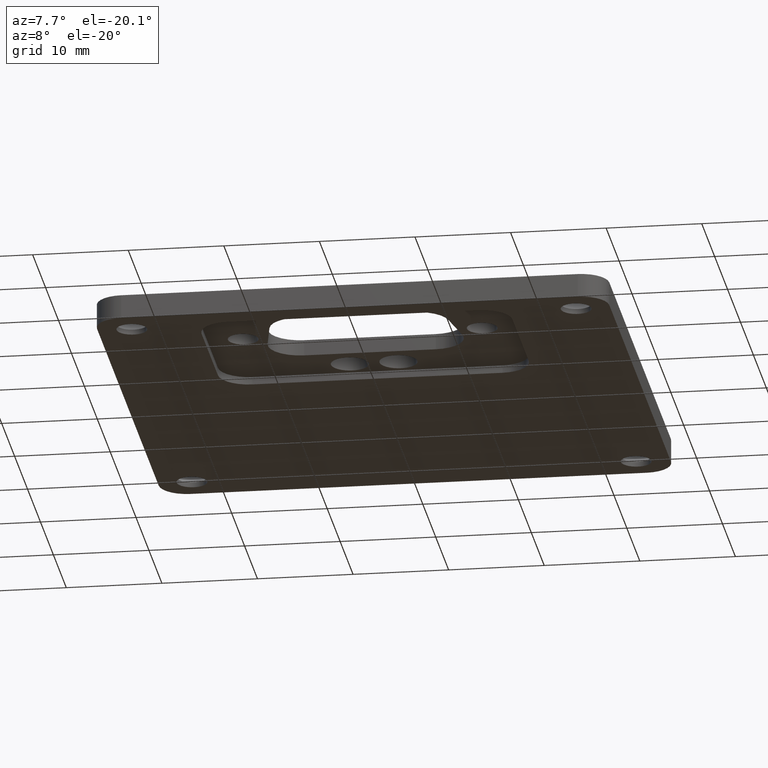
[diagram: clean part render]
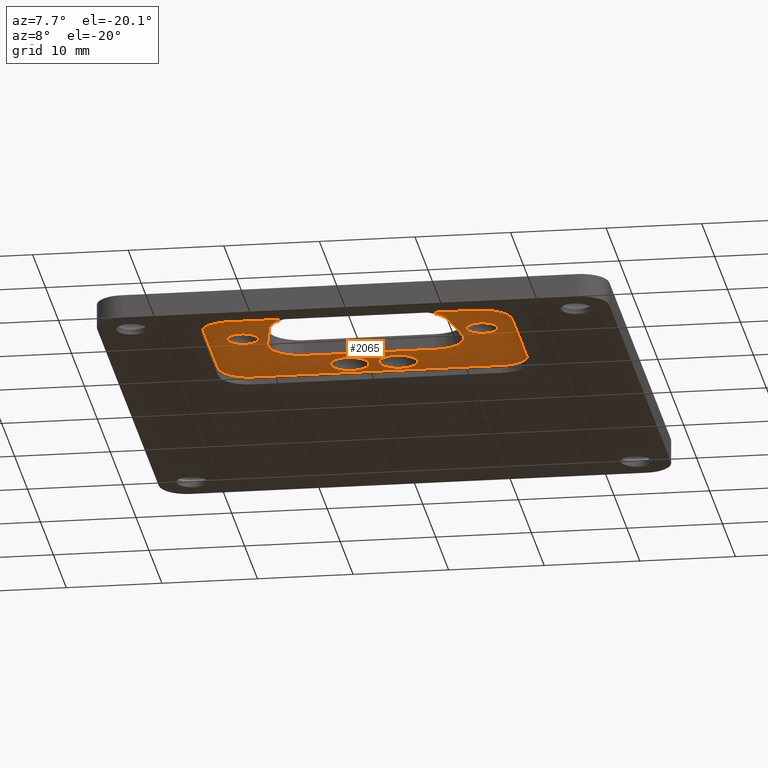
[diagram: same view with one face highlighted and labeled with its STEP entity id]
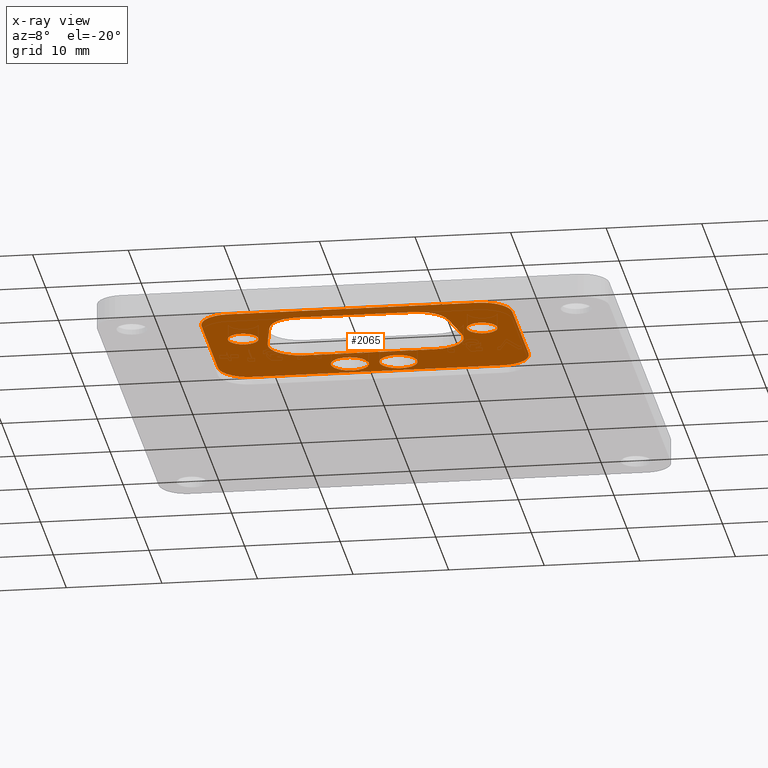
[diagram: x-ray of the same camera — body ghosted, the highlighted face saturated]
A machine part, auxiliary view. The second image highlights one B-rep face of the part: STEP entity #2065.
The next image is the same camera in x-ray: the body ghosted, the highlighted face saturated — about 0% of this face is hidden behind the body in this view.
In plain terms, the highlighted planar face has unit normal (0, 0, -1).
Its self-contained STEP definition (entity closure, byte-faithful):
#18 = ORIENTED_EDGE ( 'NONE', *, *, #163, .F. ) ;
#25 = ORIENTED_EDGE ( 'NONE', *, *, #5239, .F. ) ;
#36 = CARTESIAN_POINT ( 'NONE',  ( -0.1000000000000000200, -0.2999999999999999900, -0.01678740157480315000 ) ) ;
#42 = EDGE_LOOP ( 'NONE', ( #2202, #6302 ) ) ;
#50 = VERTEX_POINT ( 'NONE', #2145 ) ;
#86 = DIRECTION ( 'NONE',  ( 0.0000000000000000000, 0.0000000000000000000, -1.000000000000000000 ) ) ;
#124 = CIRCLE ( 'NONE', #5314, 0.1249999999999999600 ) ;
#156 = DIRECTION ( 'NONE',  ( -1.000000000000000000, 0.0000000000000000000, 0.0000000000000000000 ) ) ;
#163 = EDGE_CURVE ( 'NONE', #5773, #919, #6169, .T. ) ;
#190 = FACE_BOUND ( 'NONE', #6287, .T. ) ;
#236 = AXIS2_PLACEMENT_3D ( 'NONE', #6095, #3126, #156 ) ;
#249 = LINE ( 'NONE', #5909, #3874 ) ;
#253 = DIRECTION ( 'NONE',  ( -0.1736481776669312700, 0.9848077530122078000, 0.0000000000000000000 ) ) ;
#260 = CIRCLE ( 'NONE', #6046, 0.1250000000000000300 ) ;
#330 = CARTESIAN_POINT ( 'NONE',  ( -0.6399999999999999000, -0.3254000000000001900, -0.01678740157480316400 ) ) ;
#409 = CARTESIAN_POINT ( 'NONE',  ( -0.1000000000000000200, -0.2999999999999999900, -0.01678740157480315000 ) ) ;
#460 = DIRECTION ( 'NONE',  ( -2.731847993664263700E-016, -1.000000000000000000, 0.0000000000000000000 ) ) ;
#466 = CARTESIAN_POINT ( 'NONE',  ( 0.2383795085689338300, -0.7428999999999998900, -0.01678740157480315000 ) ) ;
#469 = ORIENTED_EDGE ( 'NONE', *, *, #1195, .F. ) ;
#512 = ORIENTED_EDGE ( 'NONE', *, *, #6392, .F. ) ;
#521 = CIRCLE ( 'NONE', #5953, 0.07812500000000001400 ) ;
#531 = VERTEX_POINT ( 'NONE', #6412 ) ;
#554 = DIRECTION ( 'NONE',  ( -1.000000000000000000, 0.0000000000000000000, 0.0000000000000000000 ) ) ;
#586 = CIRCLE ( 'NONE', #5361, 0.07812500000000000000 ) ;
#592 = LINE ( 'NONE', #3344, #5532 ) ;
#600 = CARTESIAN_POINT ( 'NONE',  ( -0.2710000000000000700, -0.5578999999999999500, -0.01678740157480315000 ) ) ;
#613 = VERTEX_POINT ( 'NONE', #4641 ) ;
#660 = ORIENTED_EDGE ( 'NONE', *, *, #3019, .T. ) ;
#715 = DIRECTION ( 'NONE',  ( 0.0000000000000000000, 0.0000000000000000000, -1.000000000000000000 ) ) ;
#767 = CARTESIAN_POINT ( 'NONE',  ( 0.4009946233976115500, -0.5808215594520348400, -0.01678740157480315000 ) ) ;
#816 = CARTESIAN_POINT ( 'NONE',  ( 0.5551259842519686800, -0.6503999999999999800, -0.01678740157480315000 ) ) ;
#858 = LINE ( 'NONE', #3006, #2161 ) ;
#910 = VERTEX_POINT ( 'NONE', #816 ) ;
#919 = VERTEX_POINT ( 'NONE', #5757 ) ;
#934 = CARTESIAN_POINT ( 'NONE',  ( -0.6399999999999996800, -0.8254000000000001300, -0.01678740157480316400 ) ) ;
#950 = DIRECTION ( 'NONE',  ( -1.000000000000000000, 0.0000000000000000000, 0.0000000000000000000 ) ) ;
#1009 = LINE ( 'NONE', #2905, #3630 ) ;
#1019 = EDGE_CURVE ( 'NONE', #919, #3635, #858, .T. ) ;
#1103 = CARTESIAN_POINT ( 'NONE',  ( 0.2383795085689338600, -0.8748999999999999000, -0.01678740157480315000 ) ) ;
#1145 = CARTESIAN_POINT ( 'NONE',  ( 0.2710000000000000700, -0.4259000000000000000, -0.01678740157480315000 ) ) ;
#1146 = CARTESIAN_POINT ( 'NONE',  ( 0.2710000000000000700, -0.5578999999999999500, -0.01678740157480315000 ) ) ;
#1155 = LINE ( 'NONE', #330, #2296 ) ;
#1195 = EDGE_CURVE ( 'NONE', #613, #3602, #3247, .T. ) ;
#1211 = DIRECTION ( 'NONE',  ( -1.000000000000000000, 0.0000000000000000000, 0.0000000000000000000 ) ) ;
#1338 = CARTESIAN_POINT ( 'NONE',  ( 0.4030000000000000200, -0.5578999999999999500, -0.01678740157480315000 ) ) ;
#1346 = AXIS2_PLACEMENT_3D ( 'NONE', #466, #3891, #950 ) ;
#1356 = ORIENTED_EDGE ( 'NONE', *, *, #4506, .T. ) ;
#1395 = EDGE_CURVE ( 'NONE', #4160, #2032, #2220, .T. ) ;
#1416 = LINE ( 'NONE', #1548, #2566 ) ;
#1505 = FACE_BOUND ( 'NONE', #4377, .T. ) ;
#1518 = VERTEX_POINT ( 'NONE', #3915 ) ;
#1548 = CARTESIAN_POINT ( 'NONE',  ( -0.9399999999999993900, -0.8749000000000001200, -0.01678740157480315000 ) ) ;
#1579 = AXIS2_PLACEMENT_3D ( 'NONE', #5128, #3366, #4614 ) ;
#1650 = CARTESIAN_POINT ( 'NONE',  ( -0.6399999999999999000, -0.3254000000000001900, -0.01678740157480261900 ) ) ;
#1667 = ORIENTED_EDGE ( 'NONE', *, *, #4045, .T. ) ;
#1705 = CARTESIAN_POINT ( 'NONE',  ( -0.4921259842519684100, -0.6503999999999999800, -0.01678740157480315000 ) ) ;
#1760 = DIRECTION ( 'NONE',  ( 0.0000000000000000000, 0.0000000000000000000, -1.000000000000000000 ) ) ;
#1861 = ORIENTED_EDGE ( 'NONE', *, *, #1876, .F. ) ;
#1876 = EDGE_CURVE ( 'NONE', #910, #4364, #2974, .T. ) ;
#1955 = DIRECTION ( 'NONE',  ( 0.0000000000000000000, 0.0000000000000000000, -1.000000000000000000 ) ) ;
#1982 = EDGE_LOOP ( 'NONE', ( #469, #3640 ) ) ;
#1989 = CARTESIAN_POINT ( 'NONE',  ( 0.1000000000000000200, -0.2999999999999999900, -0.01678740157480315000 ) ) ;
#2029 = VERTEX_POINT ( 'NONE', #6174 ) ;
#2032 = VERTEX_POINT ( 'NONE', #767 ) ;
#2050 = VECTOR ( 'NONE', #5952, 39.37007874015748100 ) ;
#2062 = PLANE ( 'NONE',  #6367 ) ;
#2065 = ADVANCED_FACE ( 'NONE', ( #1505, #4906, #190, #5290, #3973, #2647 ), #2062, .T. ) ;
#2070 = EDGE_CURVE ( 'NONE', #3602, #613, #5137, .T. ) ;
#2082 = CARTESIAN_POINT ( 'NONE',  ( -0.5149999999999997900, -0.3254000000000001900, -0.01678740157480316400 ) ) ;
#2141 = EDGE_CURVE ( 'NONE', #6335, #5773, #592, .T. ) ;
#2145 = CARTESIAN_POINT ( 'NONE',  ( 0.6399999999999996800, -0.3254000000000000200, -0.01678740157480316400 ) ) ;
#2161 = VECTOR ( 'NONE', #4993, 39.37007874015748100 ) ;
#2202 = ORIENTED_EDGE ( 'NONE', *, *, #3430, .F. ) ;
#2215 = EDGE_CURVE ( 'NONE', #4364, #910, #4212, .T. ) ;
#2220 = CIRCLE ( 'NONE', #2717, 0.1319999999999999800 ) ;
#2266 = CIRCLE ( 'NONE', #236, 0.1320000000000000900 ) ;
#2285 = ORIENTED_EDGE ( 'NONE', *, *, #2215, .F. ) ;
#2296 = VECTOR ( 'NONE', #6275, 39.37007874015748100 ) ;
#2314 = DIRECTION ( 'NONE',  ( 0.0000000000000000000, 0.0000000000000000000, -1.000000000000000000 ) ) ;
#2333 = AXIS2_PLACEMENT_3D ( 'NONE', #2919, #6415, #3428 ) ;
#2361 = AXIS2_PLACEMENT_3D ( 'NONE', #3063, #4599, #6137 ) ;
#2453 = DIRECTION ( 'NONE',  ( -1.000000000000000000, -1.326139802749642700E-016, 0.0000000000000000000 ) ) ;
#2465 = DIRECTION ( 'NONE',  ( -1.000000000000000000, 0.0000000000000000000, 0.0000000000000000000 ) ) ;
#2466 = CARTESIAN_POINT ( 'NONE',  ( 0.5149999999999996800, -0.2003999999999999900, -0.01678740157480316400 ) ) ;
#2468 = CARTESIAN_POINT ( 'NONE',  ( -0.9399999999999999500, 0.9399999999999999500, -0.01678740157480315000 ) ) ;
#2469 = AXIS2_PLACEMENT_3D ( 'NONE', #5135, #4392, #3923 ) ;
#2485 = CIRCLE ( 'NONE', #2333, 0.1319999999999999800 ) ;
#2526 = VERTEX_POINT ( 'NONE', #934 ) ;
#2548 = DIRECTION ( 'NONE',  ( -1.000000000000000000, 0.0000000000000000000, 0.0000000000000000000 ) ) ;
#2566 = VECTOR ( 'NONE', #6007, 39.37007874015748100 ) ;
#2621 = CARTESIAN_POINT ( 'NONE',  ( 0.6206344916272400500, 0.6648180321018762900, -0.01678740157480315000 ) ) ;
#2647 = FACE_OUTER_BOUND ( 'NONE', #4154, .T. ) ;
#2664 = VERTEX_POINT ( 'NONE', #6021 ) ;
#2717 = AXIS2_PLACEMENT_3D ( 'NONE', #1146, #715, #5460 ) ;
#2744 = ORIENTED_EDGE ( 'NONE', *, *, #4649, .T. ) ;
#2905 = CARTESIAN_POINT ( 'NONE',  ( 0.5149999999999999000, -0.9503999999999999100, -0.01678740157480316400 ) ) ;
#2919 = CARTESIAN_POINT ( 'NONE',  ( 0.2710000000000000700, -0.5578999999999999500, -0.01678740157480315000 ) ) ;
#2971 = VERTEX_POINT ( 'NONE', #3379 ) ;
#2974 = CIRCLE ( 'NONE', #2469, 0.06299999999999998700 ) ;
#3006 = CARTESIAN_POINT ( 'NONE',  ( -0.9399999999999999500, -0.4259000000000001100, -0.01678740157480315000 ) ) ;
#3019 = EDGE_CURVE ( 'NONE', #50, #1518, #249, .T. ) ;
#3063 = CARTESIAN_POINT ( 'NONE',  ( -0.5149999999999997900, -0.8254000000000001300, -0.01678740157480316400 ) ) ;
#3126 = DIRECTION ( 'NONE',  ( 0.0000000000000000000, 0.0000000000000000000, -1.000000000000000000 ) ) ;
#3132 = DIRECTION ( 'NONE',  ( 0.0000000000000000000, 0.0000000000000000000, -1.000000000000000000 ) ) ;
#3194 = AXIS2_PLACEMENT_3D ( 'NONE', #5795, #2314, #5280 ) ;
#3247 = CIRCLE ( 'NONE', #3194, 0.06299999999999998700 ) ;
#3275 = VECTOR ( 'NONE', #4644, 39.37007874015748100 ) ;
#3285 = DIRECTION ( 'NONE',  ( 0.0000000000000000000, 0.0000000000000000000, -1.000000000000000000 ) ) ;
#3344 = CARTESIAN_POINT ( 'NONE',  ( -0.6773234280884863300, 0.9863169668280074000, -0.01678740157480315000 ) ) ;
#3358 = DIRECTION ( 'NONE',  ( 0.0000000000000000000, 0.0000000000000000000, -1.000000000000000000 ) ) ;
#3366 = DIRECTION ( 'NONE',  ( 0.0000000000000000000, 0.0000000000000000000, -1.000000000000000000 ) ) ;
#3379 = CARTESIAN_POINT ( 'NONE',  ( 0.3683741319665452800, -0.7658215594520347800, -0.01678740157480315000 ) ) ;
#3386 = VERTEX_POINT ( 'NONE', #3426 ) ;
#3426 = CARTESIAN_POINT ( 'NONE',  ( -0.5149999999999997900, -0.9504000000000000200, -0.01678740157480316400 ) ) ;
#3428 = DIRECTION ( 'NONE',  ( -1.000000000000000000, 0.0000000000000000000, 0.0000000000000000000 ) ) ;
#3430 = EDGE_CURVE ( 'NONE', #2664, #5302, #4262, .T. ) ;
#3493 = CARTESIAN_POINT ( 'NONE',  ( -0.1781250000000000300, -0.2999999999999999900, -0.01678740157480315000 ) ) ;
#3495 = DIRECTION ( 'NONE',  ( 0.0000000000000000000, 0.0000000000000000000, -1.000000000000000000 ) ) ;
#3527 = ORIENTED_EDGE ( 'NONE', *, *, #5990, .F. ) ;
#3560 = CIRCLE ( 'NONE', #4679, 0.07812500000000001400 ) ;
#3602 = VERTEX_POINT ( 'NONE', #6101 ) ;
#3630 = VECTOR ( 'NONE', #2453, 39.37007874015748100 ) ;
#3635 = VERTEX_POINT ( 'NONE', #1145 ) ;
#3640 = ORIENTED_EDGE ( 'NONE', *, *, #2070, .F. ) ;
#3650 = EDGE_LOOP ( 'NONE', ( #2285, #1861 ) ) ;
#3790 = AXIS2_PLACEMENT_3D ( 'NONE', #600, #86, #5752 ) ;
#3857 = EDGE_CURVE ( 'NONE', #3386, #2526, #4492, .T. ) ;
#3874 = VECTOR ( 'NONE', #460, 39.37007874015748100 ) ;
#3891 = DIRECTION ( 'NONE',  ( 0.0000000000000000000, 0.0000000000000000000, -1.000000000000000000 ) ) ;
#3915 = CARTESIAN_POINT ( 'NONE',  ( 0.6399999999999996800, -0.8254000000000001300, -0.01678740157480316400 ) ) ;
#3923 = DIRECTION ( 'NONE',  ( -1.000000000000000000, 0.0000000000000000000, 0.0000000000000000000 ) ) ;
#3957 = EDGE_CURVE ( 'NONE', #2029, #531, #3560, .T. ) ;
#3973 = FACE_BOUND ( 'NONE', #3650, .T. ) ;
#4008 = EDGE_CURVE ( 'NONE', #4511, #3386, #1009, .T. ) ;
#4045 = EDGE_CURVE ( 'NONE', #2526, #4081, #1155, .T. ) ;
#4081 = VERTEX_POINT ( 'NONE', #1650 ) ;
#4083 = CARTESIAN_POINT ( 'NONE',  ( -0.4009946233976115500, -0.5808215594520348400, -0.01678740157480315000 ) ) ;
#4110 = ORIENTED_EDGE ( 'NONE', *, *, #5494, .T. ) ;
#4133 = ORIENTED_EDGE ( 'NONE', *, *, #1395, .F. ) ;
#4154 = EDGE_LOOP ( 'NONE', ( #5313, #4346, #1667, #5626, #4110, #2744, #660, #1356 ) ) ;
#4160 = VERTEX_POINT ( 'NONE', #1338 ) ;
#4165 = CARTESIAN_POINT ( 'NONE',  ( -0.5149999999999997900, -0.2004000000000001300, -0.01678740157480316400 ) ) ;
#4212 = CIRCLE ( 'NONE', #1579, 0.06299999999999998700 ) ;
#4221 = CARTESIAN_POINT ( 'NONE',  ( 0.5149999999999999000, -0.9503999999999999100, -0.01678740157480316400 ) ) ;
#4233 = ORIENTED_EDGE ( 'NONE', *, *, #6226, .F. ) ;
#4262 = CIRCLE ( 'NONE', #4603, 0.07812500000000000000 ) ;
#4301 = CARTESIAN_POINT ( 'NONE',  ( 0.5149999999999996800, -0.2003999999999999900, -0.01678740157480316400 ) ) ;
#4346 = ORIENTED_EDGE ( 'NONE', *, *, #3857, .T. ) ;
#4364 = VERTEX_POINT ( 'NONE', #5112 ) ;
#4377 = EDGE_LOOP ( 'NONE', ( #25, #4795 ) ) ;
#4392 = DIRECTION ( 'NONE',  ( 0.0000000000000000000, 0.0000000000000000000, -1.000000000000000000 ) ) ;
#4457 = VERTEX_POINT ( 'NONE', #6037 ) ;
#4492 = CIRCLE ( 'NONE', #2361, 0.1249999999999999600 ) ;
#4506 = EDGE_CURVE ( 'NONE', #1518, #4511, #124, .T. ) ;
#4511 = VERTEX_POINT ( 'NONE', #4221 ) ;
#4599 = DIRECTION ( 'NONE',  ( 0.0000000000000000000, 0.0000000000000000000, -1.000000000000000000 ) ) ;
#4603 = AXIS2_PLACEMENT_3D ( 'NONE', #409, #3358, #6347 ) ;
#4614 = DIRECTION ( 'NONE',  ( -1.000000000000000000, 0.0000000000000000000, 0.0000000000000000000 ) ) ;
#4641 = CARTESIAN_POINT ( 'NONE',  ( -0.5551259842519683500, -0.6503999999999999800, -0.01678740157480315000 ) ) ;
#4644 = DIRECTION ( 'NONE',  ( -0.1736481776669317200, -0.9848077530122078000, 0.0000000000000000000 ) ) ;
#4649 = EDGE_CURVE ( 'NONE', #5011, #50, #5630, .T. ) ;
#4654 = DIRECTION ( 'NONE',  ( 0.0000000000000000000, 0.0000000000000000000, -1.000000000000000000 ) ) ;
#4658 = ORIENTED_EDGE ( 'NONE', *, *, #1019, .F. ) ;
#4679 = AXIS2_PLACEMENT_3D ( 'NONE', #6103, #3132, #5184 ) ;
#4710 = CARTESIAN_POINT ( 'NONE',  ( 0.5149999999999997900, -0.8254000000000000200, -0.01678740157480316400 ) ) ;
#4795 = ORIENTED_EDGE ( 'NONE', *, *, #3957, .F. ) ;
#4901 = CARTESIAN_POINT ( 'NONE',  ( 0.5149999999999996800, -0.3254000000000000200, -0.01678740157480316400 ) ) ;
#4906 = FACE_BOUND ( 'NONE', #42, .T. ) ;
#4908 = ORIENTED_EDGE ( 'NONE', *, *, #5997, .F. ) ;
#4993 = DIRECTION ( 'NONE',  ( 1.000000000000000000, 0.0000000000000000000, 0.0000000000000000000 ) ) ;
#5011 = VERTEX_POINT ( 'NONE', #4301 ) ;
#5112 = CARTESIAN_POINT ( 'NONE',  ( 0.4291259842519686800, -0.6503999999999999800, -0.01678740157480315000 ) ) ;
#5128 = CARTESIAN_POINT ( 'NONE',  ( 0.4921259842519686800, -0.6503999999999999800, -0.01678740157480315000 ) ) ;
#5135 = CARTESIAN_POINT ( 'NONE',  ( 0.4921259842519686800, -0.6503999999999999800, -0.01678740157480315000 ) ) ;
#5137 = CIRCLE ( 'NONE', #6019, 0.06299999999999998700 ) ;
#5184 = DIRECTION ( 'NONE',  ( -1.000000000000000000, 0.0000000000000000000, 0.0000000000000000000 ) ) ;
#5211 = DIRECTION ( 'NONE',  ( -1.000000000000000000, 0.0000000000000000000, 0.0000000000000000000 ) ) ;
#5239 = EDGE_CURVE ( 'NONE', #531, #2029, #521, .T. ) ;
#5280 = DIRECTION ( 'NONE',  ( -1.000000000000000000, 0.0000000000000000000, 0.0000000000000000000 ) ) ;
#5290 = FACE_BOUND ( 'NONE', #1982, .T. ) ;
#5302 = VERTEX_POINT ( 'NONE', #3493 ) ;
#5313 = ORIENTED_EDGE ( 'NONE', *, *, #4008, .T. ) ;
#5314 = AXIS2_PLACEMENT_3D ( 'NONE', #4710, #1760, #5211 ) ;
#5361 = AXIS2_PLACEMENT_3D ( 'NONE', #36, #3495, #554 ) ;
#5412 = DIRECTION ( 'NONE',  ( -1.000000000000000000, 0.0000000000000000000, 0.0000000000000000000 ) ) ;
#5442 = DIRECTION ( 'NONE',  ( 0.0000000000000000000, 0.0000000000000000000, -1.000000000000000000 ) ) ;
#5460 = DIRECTION ( 'NONE',  ( -1.000000000000000000, 0.0000000000000000000, 0.0000000000000000000 ) ) ;
#5494 = EDGE_CURVE ( 'NONE', #6417, #5011, #5845, .T. ) ;
#5525 = AXIS2_PLACEMENT_3D ( 'NONE', #4901, #1955, #5412 ) ;
#5532 = VECTOR ( 'NONE', #253, 39.37007874015748900 ) ;
#5533 = DIRECTION ( 'NONE',  ( 0.0000000000000000000, 0.0000000000000000000, -1.000000000000000000 ) ) ;
#5535 = EDGE_CURVE ( 'NONE', #5302, #2664, #586, .T. ) ;
#5548 = CARTESIAN_POINT ( 'NONE',  ( -0.3683741319665453900, -0.7658215594520347800, -0.01678740157480315000 ) ) ;
#5626 = ORIENTED_EDGE ( 'NONE', *, *, #5682, .T. ) ;
#5630 = CIRCLE ( 'NONE', #5525, 0.1250000000000001100 ) ;
#5632 = ORIENTED_EDGE ( 'NONE', *, *, #6356, .F. ) ;
#5666 = ORIENTED_EDGE ( 'NONE', *, *, #2141, .F. ) ;
#5682 = EDGE_CURVE ( 'NONE', #4081, #6417, #260, .T. ) ;
#5752 = DIRECTION ( 'NONE',  ( -1.000000000000000000, 0.0000000000000000000, 0.0000000000000000000 ) ) ;
#5757 = CARTESIAN_POINT ( 'NONE',  ( -0.2710000000000000700, -0.4259000000000001100, -0.01678740157480315000 ) ) ;
#5762 = VERTEX_POINT ( 'NONE', #1103 ) ;
#5773 = VERTEX_POINT ( 'NONE', #4083 ) ;
#5781 = DIRECTION ( 'NONE',  ( -1.000000000000000000, 0.0000000000000000000, 0.0000000000000000000 ) ) ;
#5795 = CARTESIAN_POINT ( 'NONE',  ( -0.4921259842519684100, -0.6503999999999999800, -0.01678740157480315000 ) ) ;
#5845 = LINE ( 'NONE', #2466, #2050 ) ;
#5909 = CARTESIAN_POINT ( 'NONE',  ( 0.6399999999999999000, -0.3254000000000000200, -0.01678740157480316400 ) ) ;
#5917 = LINE ( 'NONE', #2621, #3275 ) ;
#5952 = DIRECTION ( 'NONE',  ( 1.000000000000000000, 1.326139802749643200E-016, 0.0000000000000000000 ) ) ;
#5953 = AXIS2_PLACEMENT_3D ( 'NONE', #1989, #5442, #2465 ) ;
#5990 = EDGE_CURVE ( 'NONE', #2971, #5762, #6315, .T. ) ;
#5997 = EDGE_CURVE ( 'NONE', #3635, #4160, #2485, .T. ) ;
#6007 = DIRECTION ( 'NONE',  ( -1.000000000000000000, -2.865019743165419700E-016, 0.0000000000000000000 ) ) ;
#6019 = AXIS2_PLACEMENT_3D ( 'NONE', #1705, #4654, #1211 ) ;
#6021 = CARTESIAN_POINT ( 'NONE',  ( -0.02187500000000002300, -0.2999999999999999900, -0.01678740157480315000 ) ) ;
#6037 = CARTESIAN_POINT ( 'NONE',  ( -0.2383795085689338600, -0.8749000000000000100, -0.01678740157480315000 ) ) ;
#6046 = AXIS2_PLACEMENT_3D ( 'NONE', #2082, #5533, #2548 ) ;
#6095 = CARTESIAN_POINT ( 'NONE',  ( -0.2383795085689338300, -0.7428999999999998900, -0.01678740157480315000 ) ) ;
#6101 = CARTESIAN_POINT ( 'NONE',  ( -0.4291259842519684100, -0.6503999999999999800, -0.01678740157480315000 ) ) ;
#6103 = CARTESIAN_POINT ( 'NONE',  ( 0.1000000000000000200, -0.2999999999999999900, -0.01678740157480315000 ) ) ;
#6137 = DIRECTION ( 'NONE',  ( -1.000000000000000000, 0.0000000000000000000, 0.0000000000000000000 ) ) ;
#6169 = CIRCLE ( 'NONE', #3790, 0.1319999999999999800 ) ;
#6174 = CARTESIAN_POINT ( 'NONE',  ( 0.02187500000000000600, -0.2999999999999999900, -0.01678740157480315000 ) ) ;
#6226 = EDGE_CURVE ( 'NONE', #5762, #4457, #1416, .T. ) ;
#6275 = DIRECTION ( 'NONE',  ( -2.731847993664263700E-016, 1.000000000000000000, 0.0000000000000000000 ) ) ;
#6287 = EDGE_LOOP ( 'NONE', ( #4908, #4658, #18, #5666, #5632, #4233, #3527, #512, #4133 ) ) ;
#6302 = ORIENTED_EDGE ( 'NONE', *, *, #5535, .F. ) ;
#6315 = CIRCLE ( 'NONE', #1346, 0.1319999999999999800 ) ;
#6335 = VERTEX_POINT ( 'NONE', #5548 ) ;
#6347 = DIRECTION ( 'NONE',  ( -1.000000000000000000, 0.0000000000000000000, 0.0000000000000000000 ) ) ;
#6356 = EDGE_CURVE ( 'NONE', #4457, #6335, #2266, .T. ) ;
#6367 = AXIS2_PLACEMENT_3D ( 'NONE', #2468, #3285, #5781 ) ;
#6392 = EDGE_CURVE ( 'NONE', #2032, #2971, #5917, .T. ) ;
#6412 = CARTESIAN_POINT ( 'NONE',  ( 0.1781250000000000300, -0.2999999999999999900, -0.01678740157480315000 ) ) ;
#6415 = DIRECTION ( 'NONE',  ( 0.0000000000000000000, 0.0000000000000000000, -1.000000000000000000 ) ) ;
#6417 = VERTEX_POINT ( 'NONE', #4165 ) ;